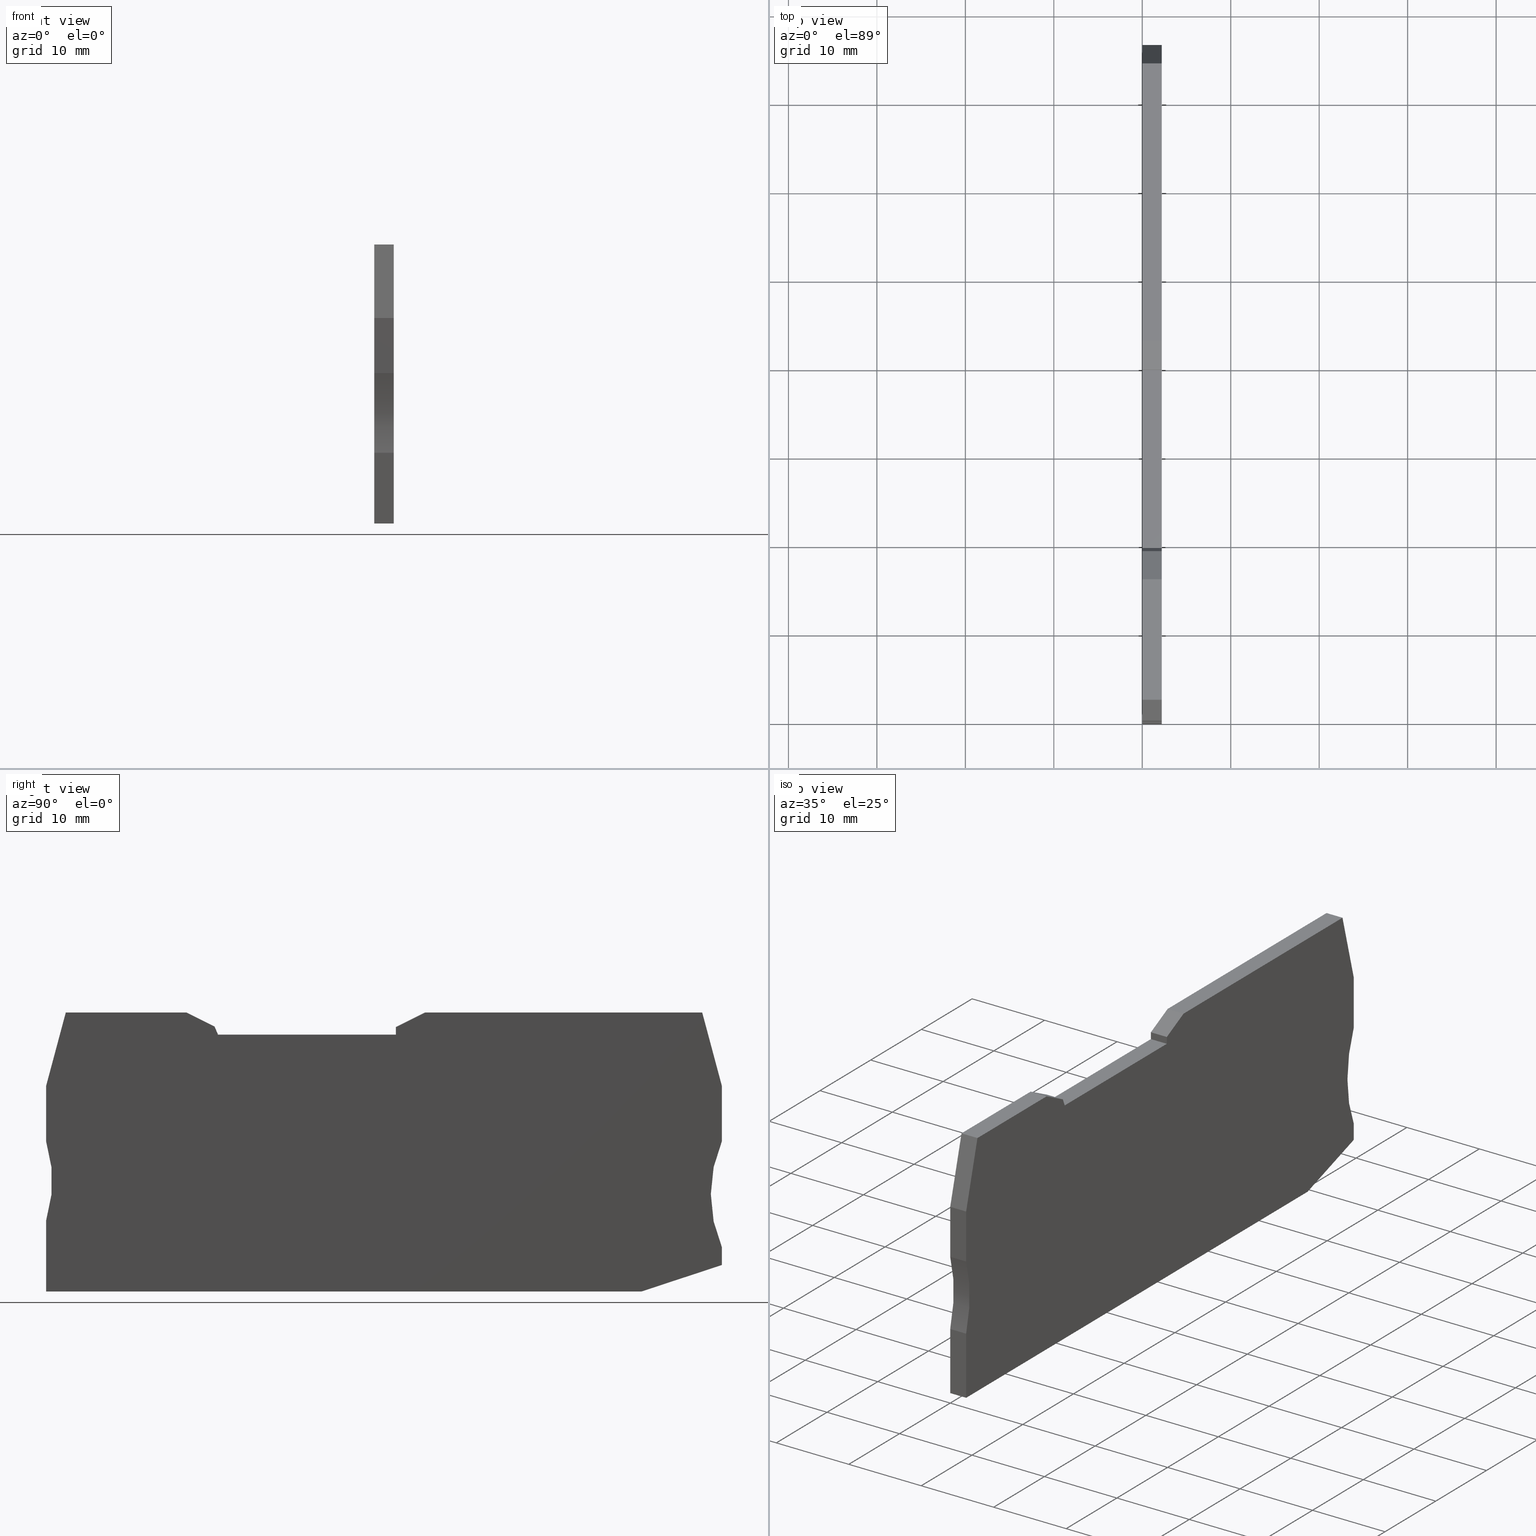
[diagram: canonical four-view strip — front | top / right | iso, engineering-drawing reading convention]
A machine part, canonical four-view strip (front | top / right | iso — engineering-drawing reading convention). The complete STEP part file that produces these views, byte-faithful:
ISO-10303-21;
HEADER;
FILE_DESCRIPTION(('Creo Elements/Direct Modeling STEP Export'),'2;1');
FILE_NAME(
'D:/temp/JobSpoolerServerData/JobServer Files/6bc5e54c-8e81-4801-906b-85
c1f5c6e055/work/output/model.stp','2018-01-20T22:33:25',(''),(''),
'Creo Elements/Direct Modeling STEP processor for AP214 (Solid Model)',
'Creo Elements/Direct Modeling 18.1I  14-Aug-2016 (C) Parametric Technol
ogy GmbH','');
FILE_SCHEMA(('AUTOMOTIVE_DESIGN { 1 0 10303 214 1 1 1 1 }'));
ENDSEC;
DATA;
#10=CARTESIAN_POINT('',(28.1611811075905,-9.15000000000794,
0.300000000000008));
#20=DIRECTION('',(7.76028776021509E-29,1.,4.55546761142704E-15));
#30=DIRECTION('',(-1.,0.,1.70351068697075E-14));
#40=AXIS2_PLACEMENT_3D('',#10,#20,#30);
#50=PLANE('',#40);
#60=CARTESIAN_POINT('',(28.1611811075905,-9.15000000000794,
-2.8421709430404E-14));
#70=DIRECTION('',(1.30896257623741E-14,-4.55546761142704E-15,1.));
#80=VECTOR('',#70,1.);
#90=LINE('',#60,#80);
#100=CARTESIAN_POINT('',(28.1611811075905,-9.15000000000793,
-3.68594044175552E-14));
#110=VERTEX_POINT('',#100);
#120=CARTESIAN_POINT('',(28.1611811075906,-9.15000000000795,
2.19999999999844));
#130=VERTEX_POINT('',#120);
#140=EDGE_CURVE('',#110,#130,#90,.T.);
#150=ORIENTED_EDGE('',*,*,#140,.T.);
#160=CARTESIAN_POINT('',(47.920285,-9.15000000000794,
-3.68594044175552E-14));
#170=DIRECTION('',(-1.,0.,0.));
#180=VECTOR('',#170,1.);
#190=LINE('',#160,#180);
#200=CARTESIAN_POINT('',(48.2784150526289,-9.15000000000794,
-3.68594044175552E-14));
#210=VERTEX_POINT('',#200);
#220=EDGE_CURVE('',#210,#110,#190,.T.);
#230=ORIENTED_EDGE('',*,*,#220,.T.);
#240=CARTESIAN_POINT('',(48.2784150526289,-9.15000000000794,
-2.8421709430404E-14));
#250=DIRECTION('',(-1.24455757664388E-14,4.55546761142704E-15,-1.));
#260=VECTOR('',#250,1.);
#270=LINE('',#240,#260);
#280=CARTESIAN_POINT('',(48.278415052629,-9.15000000000795,
2.19999999999844));
#290=VERTEX_POINT('',#280);
#300=EDGE_CURVE('',#290,#210,#270,.T.);
#310=ORIENTED_EDGE('',*,*,#300,.T.);
#320=CARTESIAN_POINT('',(47.920285,-9.15000000000794,2.19999999999844));
#330=DIRECTION('',(-1.,0.,0.));
#340=VECTOR('',#330,1.);
#350=LINE('',#320,#340);
#360=EDGE_CURVE('',#290,#130,#350,.T.);
#370=ORIENTED_EDGE('',*,*,#360,.F.);
#380=EDGE_LOOP('',(#370,#310,#230,#150));
#390=FACE_OUTER_BOUND('',#380,.T.);
#400=ADVANCED_FACE('',(#390),#50,.T.);
#410=COLOUR_RGB('',0.560784339904785,0.588235318660736,0.600000023841858
);
#420=FILL_AREA_STYLE_COLOUR('',#410);
#430=FILL_AREA_STYLE('',(#420));
#440=SURFACE_STYLE_FILL_AREA(#430);
#450=SURFACE_SIDE_STYLE('',(#440));
#460=SURFACE_STYLE_USAGE(.BOTH.,#450);
#470=PRESENTATION_STYLE_ASSIGNMENT((#460));
#480=CARTESIAN_POINT('',(83.7553585403554,-35.6536172442634,
-3.68594044175552E-14));
#490=DIRECTION('',(0.312838856482264,-0.949806217012117,0.));
#500=DIRECTION('',(-0.949806217012117,-0.312838856482264,0.));
#510=AXIS2_PLACEMENT_3D('',#480,#490,#500);
#520=PLANE('',#510);
#530=CARTESIAN_POINT('',(47.920285,-47.4566600413391,2.19999999999833));
#540=DIRECTION('',(-0.949806217012117,-0.312838856482264,
-9.43689570931383E-16));
#550=VECTOR('',#540,1.);
#560=LINE('',#530,#550);
#570=CARTESIAN_POINT('',(85.1296808260528,-35.2009550015923,
2.19999999999837));
#580=VERTEX_POINT('',#570);
#590=CARTESIAN_POINT('',(76.0243170722712,-38.2000000000014,
2.19999999999836));
#600=VERTEX_POINT('',#590);
#610=EDGE_CURVE('',#580,#600,#560,.T.);
#620=ORIENTED_EDGE('',*,*,#610,.T.);
#630=CARTESIAN_POINT('',(85.1296808260528,-35.2009550015923,
-2.8421709430404E-14));
#640=DIRECTION('',(0.,0.,1.));
#650=VECTOR('',#640,1.);
#660=LINE('',#630,#650);
#670=CARTESIAN_POINT('',(85.1296808260528,-35.2009550015923,
-3.68594044175552E-14));
#680=VERTEX_POINT('',#670);
#690=EDGE_CURVE('',#680,#580,#660,.T.);
#700=ORIENTED_EDGE('',*,*,#690,.T.);
#710=CARTESIAN_POINT('',(47.920285,-47.4566600413391,
-3.68594044175552E-14));
#720=DIRECTION('',(0.949806217012117,0.312838856482264,0.));
#730=VECTOR('',#720,1.);
#740=LINE('',#710,#730);
#750=CARTESIAN_POINT('',(76.0243170722712,-38.2000000000014,
-3.68594044175552E-14));
#760=VERTEX_POINT('',#750);
#770=EDGE_CURVE('',#760,#680,#740,.T.);
#780=ORIENTED_EDGE('',*,*,#770,.T.);
#790=CARTESIAN_POINT('',(76.0243170722712,-38.2000000000014,
-2.8421709430404E-14));
#800=DIRECTION('',(0.,0.,-1.));
#810=VECTOR('',#800,1.);
#820=LINE('',#790,#810);
#830=EDGE_CURVE('',#600,#760,#820,.T.);
#840=ORIENTED_EDGE('',*,*,#830,.T.);
#850=EDGE_LOOP('',(#840,#780,#700,#620));
#860=FACE_OUTER_BOUND('',#850,.T.);
#870=ADVANCED_FACE('',(#860),#520,.T.);
#880=COLOUR_RGB('',0.560784339904785,0.588235318660736,0.600000023841858
);
#890=FILL_AREA_STYLE_COLOUR('',#880);
#900=FILL_AREA_STYLE('',(#890));
#910=SURFACE_STYLE_FILL_AREA(#900);
#920=SURFACE_SIDE_STYLE('',(#910));
#930=SURFACE_STYLE_USAGE(.BOTH.,#920);
#940=PRESENTATION_STYLE_ASSIGNMENT((#930));
#950=CARTESIAN_POINT('',(79.8284829547486,-6.65000000001046,
-3.68594044175552E-14));
#960=DIRECTION('',(0.,1.,0.));
#970=DIRECTION('',(0.,0.,1.));
#980=AXIS2_PLACEMENT_3D('',#950,#960,#970);
#990=PLANE('',#980);
#1000=CARTESIAN_POINT('',(82.9015374042713,-6.65000000001046,
-2.8421709430404E-14));
#1010=DIRECTION('',(0.,0.,-1.));
#1020=VECTOR('',#1010,1.);
#1030=LINE('',#1000,#1020);
#1040=CARTESIAN_POINT('',(82.9015374042713,-6.65000000001046,
2.19999999999845));
#1050=VERTEX_POINT('',#1040);
#1060=CARTESIAN_POINT('',(82.9015374042713,-6.65000000001046,
-3.68594044175552E-14));
#1070=VERTEX_POINT('',#1060);
#1080=EDGE_CURVE('',#1050,#1070,#1030,.T.);
#1090=ORIENTED_EDGE('',*,*,#1080,.T.);
#1100=CARTESIAN_POINT('',(47.920285,-6.65000000001046,2.19999999999845))
;
#1110=DIRECTION('',(1.,0.,0.));
#1120=VECTOR('',#1110,1.);
#1130=LINE('',#1100,#1120);
#1140=CARTESIAN_POINT('',(51.5784150526186,-6.65000000001046,
2.19999999999845));
#1150=VERTEX_POINT('',#1140);
#1160=EDGE_CURVE('',#1150,#1050,#1130,.T.);
#1170=ORIENTED_EDGE('',*,*,#1160,.T.);
#1180=CARTESIAN_POINT('',(51.5784150526186,-6.65000000001045,
-2.8421709430404E-14));
#1190=DIRECTION('',(-1.85088132276715E-14,0.,-1.));
#1200=VECTOR('',#1190,1.);
#1210=LINE('',#1180,#1200);
#1220=CARTESIAN_POINT('',(51.5784150526186,-6.65000000001046,
-3.68594044175552E-14));
#1230=VERTEX_POINT('',#1220);
#1240=EDGE_CURVE('',#1150,#1230,#1210,.T.);
#1250=ORIENTED_EDGE('',*,*,#1240,.F.);
#1260=CARTESIAN_POINT('',(47.920285,-6.65000000001046,
-3.68594044175552E-14));
#1270=DIRECTION('',(-1.,0.,0.));
#1280=VECTOR('',#1270,1.);
#1290=LINE('',#1260,#1280);
#1300=EDGE_CURVE('',#1070,#1230,#1290,.T.);
#1310=ORIENTED_EDGE('',*,*,#1300,.T.);
#1320=EDGE_LOOP('',(#1310,#1250,#1170,#1090));
#1330=FACE_OUTER_BOUND('',#1320,.T.);
#1340=ADVANCED_FACE('',(#1330),#990,.T.);
#1350=COLOUR_RGB('',0.560784339904785,0.588235318660736,
0.600000023841858);
#1360=FILL_AREA_STYLE_COLOUR('',#1350);
#1370=FILL_AREA_STYLE('',(#1360));
#1380=SURFACE_STYLE_FILL_AREA(#1370);
#1390=SURFACE_SIDE_STYLE('',(#1380));
#1400=SURFACE_STYLE_USAGE(.BOTH.,#1390);
#1410=PRESENTATION_STYLE_ASSIGNMENT((#1400));
#1420=CARTESIAN_POINT('',(98.8774079109191,-27.2000000000027,
-3.68594044175552E-14));
#1430=DIRECTION('',(0.,0.,1.));
#1440=DIRECTION('',(1.,0.,0.));
#1450=AXIS2_PLACEMENT_3D('',#1420,#1430,#1440);
#1460=CYLINDRICAL_SURFACE('',#1450,15.);
#1470=CARTESIAN_POINT('',(85.1296808260528,-33.2000000000057,
-3.68594044175552E-14));
#1480=DIRECTION('',(0.,0.,-1.));
#1490=VECTOR('',#1480,1.);
#1500=LINE('',#1470,#1490);
#1510=CARTESIAN_POINT('',(85.1296808260528,-33.2000000000057,
2.19999999999837));
#1520=VERTEX_POINT('',#1510);
#1530=CARTESIAN_POINT('',(85.1296808260528,-33.2000000000057,
-3.68594044175552E-14));
#1540=VERTEX_POINT('',#1530);
#1550=EDGE_CURVE('',#1520,#1540,#1500,.T.);
#1560=ORIENTED_EDGE('',*,*,#1550,.T.);
#1570=CARTESIAN_POINT('',(98.8774079109191,-27.2000000000027,
2.19999999999839));
#1580=DIRECTION('',(0.,0.,1.));
#1590=DIRECTION('',(1.,0.,0.));
#1600=AXIS2_PLACEMENT_3D('',#1570,#1580,#1590);
#1610=CIRCLE('',#1600,15.);
#1620=CARTESIAN_POINT('',(85.1296808260516,-21.2000000000027,
2.19999999999841));
#1630=VERTEX_POINT('',#1620);
#1640=EDGE_CURVE('',#1630,#1520,#1610,.T.);
#1650=ORIENTED_EDGE('',*,*,#1640,.T.);
#1660=CARTESIAN_POINT('',(85.1296808260516,-21.2000000000027,
-3.68594044175552E-14));
#1670=DIRECTION('',(0.,0.,-1.));
#1680=VECTOR('',#1670,1.);
#1690=LINE('',#1660,#1680);
#1700=CARTESIAN_POINT('',(85.1296808260516,-21.2000000000027,
-3.68594044175552E-14));
#1710=VERTEX_POINT('',#1700);
#1720=EDGE_CURVE('',#1630,#1710,#1690,.T.);
#1730=ORIENTED_EDGE('',*,*,#1720,.F.);
#1740=CARTESIAN_POINT('',(98.8774079109191,-27.2000000000027,
-3.68594044175552E-14));
#1750=DIRECTION('',(0.,0.,1.));
#1760=DIRECTION('',(1.,0.,0.));
#1770=AXIS2_PLACEMENT_3D('',#1740,#1750,#1760);
#1780=CIRCLE('',#1770,15.);
#1790=EDGE_CURVE('',#1710,#1540,#1780,.T.);
#1800=ORIENTED_EDGE('',*,*,#1790,.F.);
#1810=EDGE_LOOP('',(#1800,#1730,#1650,#1560));
#1820=FACE_OUTER_BOUND('',#1810,.T.);
#1830=ADVANCED_FACE('',(#1820),#1460,.F.);
#1840=COLOUR_RGB('',0.560784339904785,0.588235318660736,
0.600000023841858);
#1850=FILL_AREA_STYLE_COLOUR('',#1840);
#1860=FILL_AREA_STYLE('',(#1850));
#1870=SURFACE_STYLE_FILL_AREA(#1860);
#1880=SURFACE_SIDE_STYLE('',(#1870));
#1890=SURFACE_STYLE_USAGE(.BOTH.,#1880);
#1900=PRESENTATION_STYLE_ASSIGNMENT((#1890));
#1910=CARTESIAN_POINT('',(27.7810984886105,-8.25070883130204,
-9.05973373915859E-13));
#1920=DIRECTION('',(0.92110933002153,0.389303997086195,
-1.02835146664877E-14));
#1930=DIRECTION('',(0.389303997086195,-0.92110933002153,
-7.63756468974913E-15));
#1940=AXIS2_PLACEMENT_3D('',#1910,#1920,#1930);
#1950=PLANE('',#1940);
#1960=CARTESIAN_POINT('',(38.6158283461584,-33.886127,2.19999999999837))
;
#1970=DIRECTION('',(-0.389303997086195,0.92110933002153,
2.80331313717852E-15));
#1980=VECTOR('',#1970,1.);
#1990=LINE('',#1960,#1980);
#2000=CARTESIAN_POINT('',(27.7810984886105,-8.25070883130206,
2.19999999999845));
#2010=VERTEX_POINT('',#2000);
#2020=EDGE_CURVE('',#130,#2010,#1990,.T.);
#2030=ORIENTED_EDGE('',*,*,#2020,.F.);
#2040=CARTESIAN_POINT('',(27.7810984886105,-8.25070883130205,
-2.8421709430404E-14));
#2050=DIRECTION('',(-1.24455757664388E-14,3.03161873061275E-15,-1.));
#2060=VECTOR('',#2050,1.);
#2070=LINE('',#2040,#2060);
#2080=CARTESIAN_POINT('',(27.7810984886105,-8.25070883130203,
-3.68594044175552E-14));
#2090=VERTEX_POINT('',#2080);
#2100=EDGE_CURVE('',#2010,#2090,#2070,.T.);
#2110=ORIENTED_EDGE('',*,*,#2100,.F.);
#2120=CARTESIAN_POINT('',(38.6158283461584,-33.886127,
-3.68594044175552E-14));
#2130=DIRECTION('',(-0.389303997086195,0.92110933002153,0.));
#2140=VECTOR('',#2130,1.);
#2150=LINE('',#2120,#2140);
#2160=EDGE_CURVE('',#110,#2090,#2150,.T.);
#2170=ORIENTED_EDGE('',*,*,#2160,.T.);
#2180=ORIENTED_EDGE('',*,*,#140,.F.);
#2190=EDGE_LOOP('',(#2180,#2170,#2110,#2030));
#2200=FACE_OUTER_BOUND('',#2190,.T.);
#2210=ADVANCED_FACE('',(#2200),#1950,.T.);
#2220=COLOUR_RGB('',0.560784339904785,0.588235318660736,
0.600000023841858);
#2230=FILL_AREA_STYLE_COLOUR('',#2220);
#2240=FILL_AREA_STYLE('',(#2230));
#2250=SURFACE_STYLE_FILL_AREA(#2240);
#2260=SURFACE_SIDE_STYLE('',(#2250));
#2270=SURFACE_STYLE_USAGE(.BOTH.,#2260);
#2280=PRESENTATION_STYLE_ASSIGNMENT((#2270));
#2290=CARTESIAN_POINT('',(14.333386917148,-6.65000000001046,
2.19999999999997));
#2300=DIRECTION('',(-0.,1.,0.));
#2310=DIRECTION('',(1.,0.,0.));
#2320=AXIS2_PLACEMENT_3D('',#2290,#2300,#2310);
#2330=PLANE('',#2320);
#2340=CARTESIAN_POINT('',(10.9578242464708,-6.65000000001046,
-2.8421709430404E-14));
#2350=DIRECTION('',(0.,0.,1.));
#2360=VECTOR('',#2350,1.);
#2370=LINE('',#2340,#2360);
#2380=CARTESIAN_POINT('',(10.9578242464708,-6.65000000001046,
-3.68594044175552E-14));
#2390=VERTEX_POINT('',#2380);
#2400=CARTESIAN_POINT('',(10.9578242464708,-6.65000000001046,
2.19999999999845));
#2410=VERTEX_POINT('',#2400);
#2420=EDGE_CURVE('',#2390,#2410,#2370,.T.);
#2430=ORIENTED_EDGE('',*,*,#2420,.T.);
#2440=CARTESIAN_POINT('',(47.920285,-6.65000000001046,
-3.68594044175552E-14));
#2450=DIRECTION('',(-1.,0.,0.));
#2460=VECTOR('',#2450,1.);
#2470=LINE('',#2440,#2460);
#2480=CARTESIAN_POINT('',(24.5796808260341,-6.65000000001046,
-3.68594044175552E-14));
#2490=VERTEX_POINT('',#2480);
#2500=EDGE_CURVE('',#2490,#2390,#2470,.T.);
#2510=ORIENTED_EDGE('',*,*,#2500,.T.);
#2520=CARTESIAN_POINT('',(24.5796808260341,-6.65000000001046,
-2.8421709430404E-14));
#2530=DIRECTION('',(6.38233830522613E-15,0.,1.));
#2540=VECTOR('',#2530,1.);
#2550=LINE('',#2520,#2540);
#2560=CARTESIAN_POINT('',(24.5796808260341,-6.65000000001046,
2.19999999999845));
#2570=VERTEX_POINT('',#2560);
#2580=EDGE_CURVE('',#2490,#2570,#2550,.T.);
#2590=ORIENTED_EDGE('',*,*,#2580,.F.);
#2600=CARTESIAN_POINT('',(47.920285,-6.65000000001046,2.19999999999845))
;
#2610=DIRECTION('',(1.,0.,0.));
#2620=VECTOR('',#2610,1.);
#2630=LINE('',#2600,#2620);
#2640=EDGE_CURVE('',#2410,#2570,#2630,.T.);
#2650=ORIENTED_EDGE('',*,*,#2640,.T.);
#2660=EDGE_LOOP('',(#2650,#2590,#2510,#2430));
#2670=FACE_OUTER_BOUND('',#2660,.T.);
#2680=ADVANCED_FACE('',(#2670),#2330,.T.);
#2690=COLOUR_RGB('',0.560784339904785,0.588235318660736,
0.600000023841858);
#2700=FILL_AREA_STYLE_COLOUR('',#2690);
#2710=FILL_AREA_STYLE('',(#2700));
#2720=SURFACE_STYLE_FILL_AREA(#2710);
#2730=SURFACE_SIDE_STYLE('',(#2720));
#2740=SURFACE_STYLE_USAGE(.BOTH.,#2730);
#2750=PRESENTATION_STYLE_ASSIGNMENT((#2740));
#2760=CARTESIAN_POINT('',(26.4045551505931,-7.56243716229187,
-8.86754922223255E-13));
#2770=DIRECTION('',(0.447213595500715,0.894427190999537,
-2.85426846118211E-15));
#2780=DIRECTION('',(0.894427190999537,-0.447213595500715,
-1.24874424858524E-14));
#2790=AXIS2_PLACEMENT_3D('',#2760,#2770,#2780);
#2800=PLANE('',#2790);
#2810=CARTESIAN_POINT('',(47.920285,-18.3203020870181,2.19999999999842))
;
#2820=DIRECTION('',(0.894427190999537,-0.447213595500715,
-1.33226762955019E-15));
#2830=VECTOR('',#2820,1.);
#2840=LINE('',#2810,#2830);
#2850=EDGE_CURVE('',#2570,#2010,#2840,.T.);
#2860=ORIENTED_EDGE('',*,*,#2850,.T.);
#2870=ORIENTED_EDGE('',*,*,#2580,.T.);
#2880=CARTESIAN_POINT('',(47.920285,-18.3203020870181,
-3.68594044175552E-14));
#2890=DIRECTION('',(-0.894427190999537,0.447213595500715,0.));
#2900=VECTOR('',#2890,1.);
#2910=LINE('',#2880,#2900);
#2920=EDGE_CURVE('',#2090,#2490,#2910,.T.);
#2930=ORIENTED_EDGE('',*,*,#2920,.T.);
#2940=ORIENTED_EDGE('',*,*,#2100,.T.);
#2950=EDGE_LOOP('',(#2940,#2930,#2870,#2860));
#2960=FACE_OUTER_BOUND('',#2950,.T.);
#2970=ADVANCED_FACE('',(#2960),#2800,.T.);
#2980=COLOUR_RGB('',0.560784339904785,0.588235318660736,
0.600000023841858);
#2990=FILL_AREA_STYLE_COLOUR('',#2980);
#3000=FILL_AREA_STYLE('',(#2990));
#3010=SURFACE_STYLE_FILL_AREA(#3000);
#3020=SURFACE_SIDE_STYLE('',(#3010));
#3030=SURFACE_STYLE_USAGE(.BOTH.,#3020);
#3040=PRESENTATION_STYLE_ASSIGNMENT((#3030));
#3050=CARTESIAN_POINT('',(48.278415052629,-8.30000000000333,
2.19999999999884));
#3060=DIRECTION('',(-1.,0.,1.24455757664388E-14));
#3070=DIRECTION('',(3.77302406067959E-29,1.,3.03161873061274E-15));
#3080=AXIS2_PLACEMENT_3D('',#3050,#3060,#3070);
#3090=PLANE('',#3080);
#3100=CARTESIAN_POINT('',(48.2784150526289,-33.886127,
-3.68594044175552E-14));
#3110=DIRECTION('',(0.,-1.,0.));
#3120=VECTOR('',#3110,1.);
#3130=LINE('',#3100,#3120);
#3140=CARTESIAN_POINT('',(48.2784150526289,-8.30000000000332,
-3.68594044175552E-14));
#3150=VERTEX_POINT('',#3140);
#3160=EDGE_CURVE('',#3150,#210,#3130,.T.);
#3170=ORIENTED_EDGE('',*,*,#3160,.T.);
#3180=CARTESIAN_POINT('',(48.2784150526289,-8.30000000000332,
-2.8421709430404E-14));
#3190=DIRECTION('',(-1.24455757664388E-14,3.03161873061275E-15,-1.));
#3200=VECTOR('',#3190,1.);
#3210=LINE('',#3180,#3200);
#3220=CARTESIAN_POINT('',(48.278415052629,-8.30000000000333,
2.19999999999845));
#3230=VERTEX_POINT('',#3220);
#3240=EDGE_CURVE('',#3230,#3150,#3210,.T.);
#3250=ORIENTED_EDGE('',*,*,#3240,.T.);
#3260=CARTESIAN_POINT('',(48.278415052629,-33.886127,2.19999999999837));
#3270=DIRECTION('',(3.78653234506086E-29,1.,3.03161873061274E-15));
#3280=VECTOR('',#3270,1.);
#3290=LINE('',#3260,#3280);
#3300=EDGE_CURVE('',#290,#3230,#3290,.T.);
#3310=ORIENTED_EDGE('',*,*,#3300,.T.);
#3320=ORIENTED_EDGE('',*,*,#300,.F.);
#3330=EDGE_LOOP('',(#3320,#3310,#3250,#3170));
#3340=FACE_OUTER_BOUND('',#3330,.T.);
#3350=ADVANCED_FACE('',(#3340),#3090,.T.);
#3360=COLOUR_RGB('',0.560784339904785,0.588235318660736,
0.600000023841858);
#3370=FILL_AREA_STYLE_COLOUR('',#3360);
#3380=FILL_AREA_STYLE('',(#3370));
#3390=SURFACE_STYLE_FILL_AREA(#3380);
#3400=SURFACE_SIDE_STYLE('',(#3390));
#3410=SURFACE_STYLE_USAGE(.BOTH.,#3400);
#3420=PRESENTATION_STYLE_ASSIGNMENT((#3410));
#3430=CARTESIAN_POINT('',(8.72968082469054,-30.4972542058032,
2.19999999999997));
#3440=DIRECTION('',(-1.,0.,0.));
#3450=DIRECTION('',(0.,1.,0.));
#3460=AXIS2_PLACEMENT_3D('',#3430,#3440,#3450);
#3470=PLANE('',#3460);
#3480=CARTESIAN_POINT('',(8.72968082469054,-33.886127,2.19999999999837))
;
#3490=DIRECTION('',(0.,1.,3.03161873061274E-15));
#3500=VECTOR('',#3490,1.);
#3510=LINE('',#3480,#3500);
#3520=CARTESIAN_POINT('',(8.72968082469054,-38.2000000000014,
2.19999999999836));
#3530=VERTEX_POINT('',#3520);
#3540=CARTESIAN_POINT('',(8.72968082469054,-30.2000000000115,
2.19999999999838));
#3550=VERTEX_POINT('',#3540);
#3560=EDGE_CURVE('',#3530,#3550,#3510,.T.);
#3570=ORIENTED_EDGE('',*,*,#3560,.T.);
#3580=CARTESIAN_POINT('',(8.72968082469054,-38.2000000000014,
-2.8421709430404E-14));
#3590=DIRECTION('',(0.,0.,-1.));
#3600=VECTOR('',#3590,1.);
#3610=LINE('',#3580,#3600);
#3620=CARTESIAN_POINT('',(8.72968082469054,-38.2000000000014,
-3.68594044175552E-14));
#3630=VERTEX_POINT('',#3620);
#3640=EDGE_CURVE('',#3530,#3630,#3610,.T.);
#3650=ORIENTED_EDGE('',*,*,#3640,.F.);
#3660=CARTESIAN_POINT('',(8.72968082469054,-33.886127,
-3.68594044175552E-14));
#3670=DIRECTION('',(0.,-1.,0.));
#3680=VECTOR('',#3670,1.);
#3690=LINE('',#3660,#3680);
#3700=CARTESIAN_POINT('',(8.72968082469054,-30.2000000000115,
-3.68594044175552E-14));
#3710=VERTEX_POINT('',#3700);
#3720=EDGE_CURVE('',#3710,#3630,#3690,.T.);
#3730=ORIENTED_EDGE('',*,*,#3720,.T.);
#3740=CARTESIAN_POINT('',(8.72968082469054,-30.2000000000115,
2.19999999999997));
#3750=DIRECTION('',(0.,0.,1.));
#3760=VECTOR('',#3750,1.);
#3770=LINE('',#3740,#3760);
#3780=EDGE_CURVE('',#3710,#3550,#3770,.T.);
#3790=ORIENTED_EDGE('',*,*,#3780,.F.);
#3800=EDGE_LOOP('',(#3790,#3730,#3650,#3570));
#3810=FACE_OUTER_BOUND('',#3800,.T.);
#3820=ADVANCED_FACE('',(#3810),#3470,.T.);
#3830=COLOUR_RGB('',0.560784339904785,0.588235318660736,
0.600000023841858);
#3840=FILL_AREA_STYLE_COLOUR('',#3830);
#3850=FILL_AREA_STYLE('',(#3840));
#3860=SURFACE_STYLE_FILL_AREA(#3850);
#3870=SURFACE_SIDE_STYLE('',(#3860));
#3880=SURFACE_STYLE_USAGE(.BOTH.,#3870);
#3890=PRESENTATION_STYLE_ASSIGNMENT((#3880));
#3900=CARTESIAN_POINT('',(83.0008368234265,-7.02059047745899,
-3.68594044175552E-14));
#3910=DIRECTION('',(0.965925826288966,0.258819045102903,-0.));
#3920=DIRECTION('',(-0.258819045102903,0.965925826288966,0.));
#3930=AXIS2_PLACEMENT_3D('',#3900,#3910,#3920);
#3940=PLANE('',#3930);
#3950=CARTESIAN_POINT('',(90.1994356388816,-33.886127,
-3.68594044175552E-14));
#3960=DIRECTION('',(-0.258819045102903,0.965925826288966,0.));
#3970=VECTOR('',#3960,1.);
#3980=LINE('',#3950,#3970);
#3990=CARTESIAN_POINT('',(85.1296808260516,-14.9655444566315,
-3.68594044175552E-14));
#4000=VERTEX_POINT('',#3990);
#4010=EDGE_CURVE('',#4000,#1070,#3980,.T.);
#4020=ORIENTED_EDGE('',*,*,#4010,.T.);
#4030=CARTESIAN_POINT('',(85.1296808260516,-14.9655444566315,
-2.8421709430404E-14));
#4040=DIRECTION('',(0.,0.,1.));
#4050=VECTOR('',#4040,1.);
#4060=LINE('',#4030,#4050);
#4070=CARTESIAN_POINT('',(85.1296808260516,-14.9655444566315,
2.19999999999843));
#4080=VERTEX_POINT('',#4070);
#4090=EDGE_CURVE('',#4000,#4080,#4060,.T.);
#4100=ORIENTED_EDGE('',*,*,#4090,.F.);
#4110=CARTESIAN_POINT('',(90.1994356388816,-33.886127,2.19999999999837))
;
#4120=DIRECTION('',(0.258819045102903,-0.965925826288966,
-2.96984659087229E-15));
#4130=VECTOR('',#4120,1.);
#4140=LINE('',#4110,#4130);
#4150=EDGE_CURVE('',#1050,#4080,#4140,.T.);
#4160=ORIENTED_EDGE('',*,*,#4150,.T.);
#4170=ORIENTED_EDGE('',*,*,#1080,.F.);
#4180=EDGE_LOOP('',(#4170,#4160,#4100,#4020));
#4190=FACE_OUTER_BOUND('',#4180,.T.);
#4200=ADVANCED_FACE('',(#4190),#3940,.T.);
#4210=COLOUR_RGB('',0.560784339904785,0.588235318660736,
0.600000023841858);
#4220=FILL_AREA_STYLE_COLOUR('',#4210);
#4230=FILL_AREA_STYLE('',(#4220));
#4240=SURFACE_STYLE_FILL_AREA(#4230);
#4250=SURFACE_SIDE_STYLE('',(#4240));
#4260=SURFACE_STYLE_USAGE(.BOTH.,#4250);
#4270=PRESENTATION_STYLE_ASSIGNMENT((#4260));
#4280=CARTESIAN_POINT('',(79.8284829547486,-6.65000000001046,
2.19999999999845));
#4290=DIRECTION('',(0.,-3.03161873061274E-15,1.));
#4300=DIRECTION('',(0.,-1.,-3.03161873061274E-15));
#4310=AXIS2_PLACEMENT_3D('',#4280,#4290,#4300);
#4320=PLANE('',#4310);
#4330=CARTESIAN_POINT('',(3.65992601186053,-33.886127,2.19999999999837))
;
#4340=DIRECTION('',(0.258819045102903,0.965925826288966,
2.96984659087229E-15));
#4350=VECTOR('',#4340,1.);
#4360=LINE('',#4330,#4350);
#4370=CARTESIAN_POINT('',(8.72968082469053,-14.9655444566315,
2.19999999999843));
#4380=VERTEX_POINT('',#4370);
#4390=EDGE_CURVE('',#4380,#2410,#4360,.T.);
#4400=ORIENTED_EDGE('',*,*,#4390,.F.);
#4410=ORIENTED_EDGE('',*,*,#2640,.F.);
#4420=ORIENTED_EDGE('',*,*,#2850,.F.);
#4430=ORIENTED_EDGE('',*,*,#2020,.T.);
#4440=ORIENTED_EDGE('',*,*,#360,.T.);
#4450=ORIENTED_EDGE('',*,*,#3300,.F.);
#4460=CARTESIAN_POINT('',(47.920285,-8.4790650263176,2.19999999999845));
#4470=DIRECTION('',(0.894427191000128,0.447213595499534,
1.36002320516582E-15));
#4480=VECTOR('',#4470,1.);
#4490=LINE('',#4460,#4480);
#4500=EDGE_CURVE('',#3230,#1150,#4490,.T.);
#4510=ORIENTED_EDGE('',*,*,#4500,.F.);
#4520=ORIENTED_EDGE('',*,*,#1160,.F.);
#4530=ORIENTED_EDGE('',*,*,#4150,.F.);
#4540=CARTESIAN_POINT('',(85.1296808260516,-33.886127,2.19999999999837))
;
#4550=DIRECTION('',(2.77555756156289E-17,-1.,-3.03161873061274E-15));
#4560=VECTOR('',#4550,1.);
#4570=LINE('',#4540,#4560);
#4580=EDGE_CURVE('',#4080,#1630,#4570,.T.);
#4590=ORIENTED_EDGE('',*,*,#4580,.F.);
#4600=ORIENTED_EDGE('',*,*,#1640,.F.);
#4610=CARTESIAN_POINT('',(85.1296808260528,-33.886127,2.19999999999837))
;
#4620=DIRECTION('',(0.,1.,3.03161873061274E-15));
#4630=VECTOR('',#4620,1.);
#4640=LINE('',#4610,#4630);
#4650=EDGE_CURVE('',#580,#1520,#4640,.T.);
#4660=ORIENTED_EDGE('',*,*,#4650,.T.);
#4670=ORIENTED_EDGE('',*,*,#610,.F.);
#4680=CARTESIAN_POINT('',(47.920285,-38.2000000000014,2.19999999999836))
;
#4690=DIRECTION('',(-1.,0.,0.));
#4700=VECTOR('',#4690,1.);
#4710=LINE('',#4680,#4700);
#4720=EDGE_CURVE('',#600,#3530,#4710,.T.);
#4730=ORIENTED_EDGE('',*,*,#4720,.F.);
#4740=ORIENTED_EDGE('',*,*,#3560,.F.);
#4750=CARTESIAN_POINT('',(-5.57940719656269,-25.7000000000085,
2.19999999999839));
#4760=DIRECTION('',(0.,0.,1.));
#4770=DIRECTION('',(1.,0.,0.));
#4780=AXIS2_PLACEMENT_3D('',#4750,#4760,#4770);
#4790=CIRCLE('',#4780,15.);
#4800=CARTESIAN_POINT('',(8.72968082469053,-21.2000000000056,
2.19999999999841));
#4810=VERTEX_POINT('',#4800);
#4820=EDGE_CURVE('',#3550,#4810,#4790,.T.);
#4830=ORIENTED_EDGE('',*,*,#4820,.F.);
#4840=CARTESIAN_POINT('',(8.72968082469053,-33.886127,2.19999999999837))
;
#4850=DIRECTION('',(0.,1.,3.03161873061274E-15));
#4860=VECTOR('',#4850,1.);
#4870=LINE('',#4840,#4860);
#4880=EDGE_CURVE('',#4810,#4380,#4870,.T.);
#4890=ORIENTED_EDGE('',*,*,#4880,.F.);
#4900=EDGE_LOOP('',(#4890,#4830,#4740,#4730,#4670,#4660,#4600,#4590,
#4530,#4520,#4510,#4450,#4440,#4430,#4420,#4410,#4400));
#4910=FACE_OUTER_BOUND('',#4900,.T.);
#4920=ADVANCED_FACE('',(#4910),#4320,.T.);
#4930=COLOUR_RGB('',0.560784339904785,0.588235318660736,
0.600000023841858);
#4940=FILL_AREA_STYLE_COLOUR('',#4930);
#4950=FILL_AREA_STYLE('',(#4940));
#4960=SURFACE_STYLE_FILL_AREA(#4950);
#4970=SURFACE_SIDE_STYLE('',(#4960));
#4980=SURFACE_STYLE_USAGE(.BOTH.,#4970);
#4990=PRESENTATION_STYLE_ASSIGNMENT((#4980));
#5000=CARTESIAN_POINT('',(8.72968082469053,-14.9655444566315,
2.19999999999997));
#5010=DIRECTION('',(-1.,0.,0.));
#5020=DIRECTION('',(0.,1.,0.));
#5030=AXIS2_PLACEMENT_3D('',#5000,#5010,#5020);
#5040=PLANE('',#5030);
#5050=ORIENTED_EDGE('',*,*,#4880,.T.);
#5060=CARTESIAN_POINT('',(8.72968082469053,-21.2000000000055,
2.19999999999997));
#5070=DIRECTION('',(0.,0.,-1.));
#5080=VECTOR('',#5070,1.);
#5090=LINE('',#5060,#5080);
#5100=CARTESIAN_POINT('',(8.72968082469053,-21.2000000000056,
-3.68594044175552E-14));
#5110=VERTEX_POINT('',#5100);
#5120=EDGE_CURVE('',#4810,#5110,#5090,.T.);
#5130=ORIENTED_EDGE('',*,*,#5120,.F.);
#5140=CARTESIAN_POINT('',(8.72968082469053,-33.886127,
-3.68594044175552E-14));
#5150=DIRECTION('',(0.,-1.,0.));
#5160=VECTOR('',#5150,1.);
#5170=LINE('',#5140,#5160);
#5180=CARTESIAN_POINT('',(8.72968082469053,-14.9655444566315,
-3.68594044175552E-14));
#5190=VERTEX_POINT('',#5180);
#5200=EDGE_CURVE('',#5190,#5110,#5170,.T.);
#5210=ORIENTED_EDGE('',*,*,#5200,.T.);
#5220=CARTESIAN_POINT('',(8.72968082469053,-14.9655444566315,
-2.8421709430404E-14));
#5230=DIRECTION('',(0.,0.,1.));
#5240=VECTOR('',#5230,1.);
#5250=LINE('',#5220,#5240);
#5260=EDGE_CURVE('',#5190,#4380,#5250,.T.);
#5270=ORIENTED_EDGE('',*,*,#5260,.F.);
#5280=EDGE_LOOP('',(#5270,#5210,#5130,#5050));
#5290=FACE_OUTER_BOUND('',#5280,.T.);
#5300=ADVANCED_FACE('',(#5290),#5040,.T.);
#5310=COLOUR_RGB('',0.560784339904785,0.588235318660736,
0.600000023841858);
#5320=FILL_AREA_STYLE_COLOUR('',#5310);
#5330=FILL_AREA_STYLE('',(#5320));
#5340=SURFACE_STYLE_FILL_AREA(#5330);
#5350=SURFACE_SIDE_STYLE('',(#5340));
#5360=SURFACE_STYLE_USAGE(.BOTH.,#5350);
#5370=PRESENTATION_STYLE_ASSIGNMENT((#5360));
#5380=CARTESIAN_POINT('',(20.0991862296523,-7.1779622007583,
-3.68594044175552E-14));
#5390=DIRECTION('',(0.,0.,-1.));
#5400=DIRECTION('',(-1.,0.,0.));
#5410=AXIS2_PLACEMENT_3D('',#5380,#5390,#5400);
#5420=PLANE('',#5410);
#5430=ORIENTED_EDGE('',*,*,#5200,.F.);
#5440=CARTESIAN_POINT('',(-5.57940719656269,-25.7000000000085,
-3.68594044175552E-14));
#5450=DIRECTION('',(0.,0.,1.));
#5460=DIRECTION('',(1.,0.,0.));
#5470=AXIS2_PLACEMENT_3D('',#5440,#5450,#5460);
#5480=CIRCLE('',#5470,15.);
#5490=EDGE_CURVE('',#3710,#5110,#5480,.T.);
#5500=ORIENTED_EDGE('',*,*,#5490,.T.);
#5510=ORIENTED_EDGE('',*,*,#3720,.F.);
#5520=CARTESIAN_POINT('',(47.920285,-38.2000000000014,
-3.68594044175552E-14));
#5530=DIRECTION('',(1.,0.,0.));
#5540=VECTOR('',#5530,1.);
#5550=LINE('',#5520,#5540);
#5560=EDGE_CURVE('',#3630,#760,#5550,.T.);
#5570=ORIENTED_EDGE('',*,*,#5560,.F.);
#5580=ORIENTED_EDGE('',*,*,#770,.F.);
#5590=CARTESIAN_POINT('',(85.1296808260528,-33.886127,
-3.68594044175552E-14));
#5600=DIRECTION('',(0.,-1.,0.));
#5610=VECTOR('',#5600,1.);
#5620=LINE('',#5590,#5610);
#5630=EDGE_CURVE('',#1540,#680,#5620,.T.);
#5640=ORIENTED_EDGE('',*,*,#5630,.T.);
#5650=ORIENTED_EDGE('',*,*,#1790,.T.);
#5660=CARTESIAN_POINT('',(85.1296808260516,-33.886127,
-3.68594044175552E-14));
#5670=DIRECTION('',(-2.77555756156289E-17,1.,0.));
#5680=VECTOR('',#5670,1.);
#5690=LINE('',#5660,#5680);
#5700=EDGE_CURVE('',#1710,#4000,#5690,.T.);
#5710=ORIENTED_EDGE('',*,*,#5700,.F.);
#5720=ORIENTED_EDGE('',*,*,#4010,.F.);
#5730=ORIENTED_EDGE('',*,*,#1300,.F.);
#5740=CARTESIAN_POINT('',(47.920285,-8.47906502631758,
-3.68594044175552E-14));
#5750=DIRECTION('',(-0.894427191000128,-0.447213595499534,0.));
#5760=VECTOR('',#5750,1.);
#5770=LINE('',#5740,#5760);
#5780=EDGE_CURVE('',#1230,#3150,#5770,.T.);
#5790=ORIENTED_EDGE('',*,*,#5780,.F.);
#5800=ORIENTED_EDGE('',*,*,#3160,.F.);
#5810=ORIENTED_EDGE('',*,*,#220,.F.);
#5820=ORIENTED_EDGE('',*,*,#2160,.F.);
#5830=ORIENTED_EDGE('',*,*,#2920,.F.);
#5840=ORIENTED_EDGE('',*,*,#2500,.F.);
#5850=CARTESIAN_POINT('',(3.65992601186053,-33.886127,
-3.68594044175552E-14));
#5860=DIRECTION('',(-0.258819045102903,-0.965925826288966,0.));
#5870=VECTOR('',#5860,1.);
#5880=LINE('',#5850,#5870);
#5890=EDGE_CURVE('',#2390,#5190,#5880,.T.);
#5900=ORIENTED_EDGE('',*,*,#5890,.F.);
#5910=EDGE_LOOP('',(#5900,#5840,#5830,#5820,#5810,#5800,#5790,#5730,
#5720,#5710,#5650,#5640,#5580,#5570,#5510,#5500,#5430));
#5920=FACE_OUTER_BOUND('',#5910,.T.);
#5930=ADVANCED_FACE('',(#5920),#5420,.T.);
#5940=COLOUR_RGB('',0.560784339904785,0.588235318660736,
0.600000023841858);
#5950=FILL_AREA_STYLE_COLOUR('',#5940);
#5960=FILL_AREA_STYLE('',(#5950));
#5970=SURFACE_STYLE_FILL_AREA(#5960);
#5980=SURFACE_SIDE_STYLE('',(#5970));
#5990=SURFACE_STYLE_USAGE(.BOTH.,#5980);
#6000=PRESENTATION_STYLE_ASSIGNMENT((#5990));
#6010=CARTESIAN_POINT('',(-5.57940719656269,-25.7000000000085,
2.19999999999997));
#6020=DIRECTION('',(0.,0.,1.));
#6030=DIRECTION('',(1.,0.,0.));
#6040=AXIS2_PLACEMENT_3D('',#6010,#6020,#6030);
#6050=CYLINDRICAL_SURFACE('',#6040,15.);
#6060=ORIENTED_EDGE('',*,*,#5120,.T.);
#6070=ORIENTED_EDGE('',*,*,#4820,.T.);
#6080=ORIENTED_EDGE('',*,*,#3780,.T.);
#6090=ORIENTED_EDGE('',*,*,#5490,.F.);
#6100=EDGE_LOOP('',(#6090,#6080,#6070,#6060));
#6110=FACE_OUTER_BOUND('',#6100,.T.);
#6120=ADVANCED_FACE('',(#6110),#6050,.F.);
#6130=COLOUR_RGB('',0.560784339904785,0.588235318660736,
0.600000023841858);
#6140=FILL_AREA_STYLE_COLOUR('',#6130);
#6150=FILL_AREA_STYLE('',(#6140));
#6160=SURFACE_STYLE_FILL_AREA(#6150);
#6170=SURFACE_SIDE_STYLE('',(#6160));
#6180=SURFACE_STYLE_USAGE(.BOTH.,#6170);
#6190=PRESENTATION_STYLE_ASSIGNMENT((#6180));
#6200=CARTESIAN_POINT('',(67.5296808260516,-38.2000000000014,
-2.8421709430404E-14));
#6210=DIRECTION('',(-0.,-1.,-0.));
#6220=DIRECTION('',(-1.,0.,0.));
#6230=AXIS2_PLACEMENT_3D('',#6200,#6210,#6220);
#6240=PLANE('',#6230);
#6250=ORIENTED_EDGE('',*,*,#3640,.T.);
#6260=ORIENTED_EDGE('',*,*,#4720,.T.);
#6270=ORIENTED_EDGE('',*,*,#830,.F.);
#6280=ORIENTED_EDGE('',*,*,#5560,.T.);
#6290=EDGE_LOOP('',(#6280,#6270,#6260,#6250));
#6300=FACE_OUTER_BOUND('',#6290,.T.);
#6310=ADVANCED_FACE('',(#6300),#6240,.T.);
#6320=COLOUR_RGB('',0.560784339904785,0.588235318660736,
0.600000023841858);
#6330=FILL_AREA_STYLE_COLOUR('',#6320);
#6340=FILL_AREA_STYLE('',(#6330));
#6350=SURFACE_STYLE_FILL_AREA(#6340);
#6360=SURFACE_SIDE_STYLE('',(#6350));
#6370=SURFACE_STYLE_USAGE(.BOTH.,#6360);
#6380=PRESENTATION_STYLE_ASSIGNMENT((#6370));
#6390=CARTESIAN_POINT('',(85.1296808260516,-14.9655444566315,
-3.68594044175552E-14));
#6400=DIRECTION('',(1.,2.77555756156289E-17,-0.));
#6410=DIRECTION('',(-2.77555756156289E-17,1.,0.));
#6420=AXIS2_PLACEMENT_3D('',#6390,#6400,#6410);
#6430=PLANE('',#6420);
#6440=ORIENTED_EDGE('',*,*,#1720,.T.);
#6450=ORIENTED_EDGE('',*,*,#4580,.T.);
#6460=ORIENTED_EDGE('',*,*,#4090,.T.);
#6470=ORIENTED_EDGE('',*,*,#5700,.T.);
#6480=EDGE_LOOP('',(#6470,#6460,#6450,#6440));
#6490=FACE_OUTER_BOUND('',#6480,.T.);
#6500=ADVANCED_FACE('',(#6490),#6430,.T.);
#6510=COLOUR_RGB('',0.560784339904785,0.588235318660736,
0.600000023841858);
#6520=FILL_AREA_STYLE_COLOUR('',#6510);
#6530=FILL_AREA_STYLE('',(#6520));
#6540=SURFACE_STYLE_FILL_AREA(#6530);
#6550=SURFACE_SIDE_STYLE('',(#6540));
#6560=SURFACE_STYLE_USAGE(.BOTH.,#6550);
#6570=PRESENTATION_STYLE_ASSIGNMENT((#6560));
#6580=CARTESIAN_POINT('',(10.8585248273156,-7.02059047745902,
2.19999999999997));
#6590=DIRECTION('',(-0.965925826288966,0.258819045102903,0.));
#6600=DIRECTION('',(0.258819045102903,0.965925826288966,0.));
#6610=AXIS2_PLACEMENT_3D('',#6580,#6590,#6600);
#6620=PLANE('',#6610);
#6630=ORIENTED_EDGE('',*,*,#5260,.T.);
#6640=ORIENTED_EDGE('',*,*,#5890,.T.);
#6650=ORIENTED_EDGE('',*,*,#2420,.F.);
#6660=ORIENTED_EDGE('',*,*,#4390,.T.);
#6670=EDGE_LOOP('',(#6660,#6650,#6640,#6630));
#6680=FACE_OUTER_BOUND('',#6670,.T.);
#6690=ADVANCED_FACE('',(#6680),#6620,.T.);
#6700=COLOUR_RGB('',0.560784339904785,0.588235318660736,
0.600000023841858);
#6710=FILL_AREA_STYLE_COLOUR('',#6700);
#6720=FILL_AREA_STYLE('',(#6710));
#6730=SURFACE_STYLE_FILL_AREA(#6720);
#6740=SURFACE_SIDE_STYLE('',(#6730));
#6750=SURFACE_STYLE_USAGE(.BOTH.,#6740);
#6760=PRESENTATION_STYLE_ASSIGNMENT((#6750));
#6770=CARTESIAN_POINT('',(85.1296808260528,-35.2009550015923,
-2.20000240000004));
#6780=DIRECTION('',(-1.,0.,0.));
#6790=DIRECTION('',(0.,1.,0.));
#6800=AXIS2_PLACEMENT_3D('',#6770,#6780,#6790);
#6810=PLANE('',#6800);
#6820=ORIENTED_EDGE('',*,*,#5630,.F.);
#6830=ORIENTED_EDGE('',*,*,#690,.F.);
#6840=ORIENTED_EDGE('',*,*,#4650,.F.);
#6850=ORIENTED_EDGE('',*,*,#1550,.F.);
#6860=EDGE_LOOP('',(#6850,#6840,#6830,#6820));
#6870=FACE_OUTER_BOUND('',#6860,.T.);
#6880=ADVANCED_FACE('',(#6870),#6810,.F.);
#6890=COLOUR_RGB('',0.560784339904785,0.588235318660736,
0.600000023841858);
#6900=FILL_AREA_STYLE_COLOUR('',#6890);
#6910=FILL_AREA_STYLE('',(#6900));
#6920=SURFACE_STYLE_FILL_AREA(#6910);
#6930=SURFACE_SIDE_STYLE('',(#6920));
#6940=SURFACE_STYLE_USAGE(.BOTH.,#6930);
#6950=PRESENTATION_STYLE_ASSIGNMENT((#6940));
#6960=CARTESIAN_POINT('',(51.5784150526186,-6.65000000001048,
2.1999999999988));
#6970=DIRECTION('',(-0.447213595499534,0.894427191000128,
8.27739291197629E-15));
#6980=DIRECTION('',(0.894427191000128,0.447213595499534,
-9.77588026045406E-15));
#6990=AXIS2_PLACEMENT_3D('',#6960,#6970,#6980);
#7000=PLANE('',#6990);
#7010=ORIENTED_EDGE('',*,*,#4500,.T.);
#7020=ORIENTED_EDGE('',*,*,#3240,.F.);
#7030=ORIENTED_EDGE('',*,*,#5780,.T.);
#7040=ORIENTED_EDGE('',*,*,#1240,.T.);
#7050=EDGE_LOOP('',(#7040,#7030,#7020,#7010));
#7060=FACE_OUTER_BOUND('',#7050,.T.);
#7070=ADVANCED_FACE('',(#7060),#7000,.T.);
#7080=COLOUR_RGB('',0.560784339904785,0.588235318660736,
0.600000023841858);
#7090=FILL_AREA_STYLE_COLOUR('',#7080);
#7100=FILL_AREA_STYLE('',(#7090));
#7110=SURFACE_STYLE_FILL_AREA(#7100);
#7120=SURFACE_SIDE_STYLE('',(#7110));
#7130=SURFACE_STYLE_USAGE(.BOTH.,#7120);
#7140=PRESENTATION_STYLE_ASSIGNMENT((#7130));
#7150=CLOSED_SHELL('',(#400,#870,#1340,#1830,#2210,#2680,#2970,#3350,
#3820,#4200,#4920,#5300,#5930,#6120,#6310,#6500,#6690,#6880,#7070));
#7160=MANIFOLD_SOLID_BREP('',#7150);
#7170=CARTESIAN_POINT('',(0.,0.,0.));
#7180=DIRECTION('',(0.,0.,1.));
#7190=DIRECTION('',(1.,0.,0.));
#7200=AXIS2_PLACEMENT_3D('',#7170,#7180,#7190);
#7210=APPLICATION_CONTEXT(' ');
#7220=APPLICATION_PROTOCOL_DEFINITION(' ','automotive_design',1998,#7210
);
#7230=PRODUCT_CONTEXT('',#7210,'mechanical');
#7240=PRODUCT_DEFINITION_CONTEXT('part definition',#7210,'design');
#7250=PRODUCT('D-QTC_1.5-TWIN-select','D-QTC_1.5-TWIN-select','',(#7230)
);
#7260=PRODUCT_RELATED_PRODUCT_CATEGORY('part',' ',(#7250));
#7270=PRODUCT_DEFINITION_FORMATION_WITH_SPECIFIED_SOURCE('','',#7250,
.BOUGHT.);
#7280=PRODUCT_DEFINITION('',' ',#7270,#7240);
#7290=PRODUCT_DEFINITION_SHAPE('','',#7280);
#7300=DIMENSIONAL_EXPONENTS(1.,0.,0.,0.,0.,0.,0.);
#7310=DIMENSIONAL_EXPONENTS(0.,0.,0.,0.,0.,0.,0.);
#7320=DIMENSIONAL_EXPONENTS(0.,0.,0.,0.,0.,0.,0.);
#7330=(LENGTH_UNIT() NAMED_UNIT(*) SI_UNIT(.MILLI.,.METRE.));
#7340=(NAMED_UNIT(*) PLANE_ANGLE_UNIT() SI_UNIT($,.RADIAN.));
#7350=(NAMED_UNIT(*) SI_UNIT($,.STERADIAN.) SOLID_ANGLE_UNIT());
#7360=(GEOMETRIC_REPRESENTATION_CONTEXT(3) 
GLOBAL_UNCERTAINTY_ASSIGNED_CONTEXT((#7370)) 
GLOBAL_UNIT_ASSIGNED_CONTEXT((#7330,#7340,#7350)) REPRESENTATION_CONTEXT
('',''));
#7370=UNCERTAINTY_MEASURE_WITH_UNIT(LENGTH_MEASURE(1.E-6),#7330,
'distance_accuracy_value','maximum gap value');
#7380=ADVANCED_BREP_SHAPE_REPRESENTATION('',(#7200,#7160),#7360);
#7390=SHAPE_DEFINITION_REPRESENTATION(#7290,#7380);
#7400=COLOUR_RGB('',0.560784339904785,0.588235318660736,
0.600000023841858);
#7410=FILL_AREA_STYLE_COLOUR('',#7400);
#7420=FILL_AREA_STYLE('',(#7410));
#7430=SURFACE_STYLE_FILL_AREA(#7420);
#7440=SURFACE_SIDE_STYLE('',(#7430));
#7450=SURFACE_STYLE_USAGE(.BOTH.,#7440);
#7460=PRESENTATION_STYLE_ASSIGNMENT((#7450));
#7470=STYLED_ITEM('',(#7460),#7160);
#7480=OVER_RIDING_STYLED_ITEM('',(#470),#400,#7470);
#7490=OVER_RIDING_STYLED_ITEM('',(#940),#870,#7470);
#7500=OVER_RIDING_STYLED_ITEM('',(#1410),#1340,#7470);
#7510=OVER_RIDING_STYLED_ITEM('',(#1900),#1830,#7470);
#7520=OVER_RIDING_STYLED_ITEM('',(#2280),#2210,#7470);
#7530=OVER_RIDING_STYLED_ITEM('',(#2750),#2680,#7470);
#7540=OVER_RIDING_STYLED_ITEM('',(#3040),#2970,#7470);
#7550=OVER_RIDING_STYLED_ITEM('',(#3420),#3350,#7470);
#7560=OVER_RIDING_STYLED_ITEM('',(#3890),#3820,#7470);
#7570=OVER_RIDING_STYLED_ITEM('',(#4270),#4200,#7470);
#7580=OVER_RIDING_STYLED_ITEM('',(#4990),#4920,#7470);
#7590=OVER_RIDING_STYLED_ITEM('',(#5370),#5300,#7470);
#7600=OVER_RIDING_STYLED_ITEM('',(#6000),#5930,#7470);
#7610=OVER_RIDING_STYLED_ITEM('',(#6190),#6120,#7470);
#7620=OVER_RIDING_STYLED_ITEM('',(#6380),#6310,#7470);
#7630=OVER_RIDING_STYLED_ITEM('',(#6570),#6500,#7470);
#7640=OVER_RIDING_STYLED_ITEM('',(#6760),#6690,#7470);
#7650=OVER_RIDING_STYLED_ITEM('',(#6950),#6880,#7470);
#7660=OVER_RIDING_STYLED_ITEM('',(#7140),#7070,#7470);
#7670=DRAUGHTING_MODEL('',(#7470,#7480,#7490,#7500,#7510,#7520,#7530,
#7540,#7550,#7560,#7570,#7580,#7590,#7600,#7610,#7620,#7630,#7640,#7650,
#7660),#7360);
#7680=CARTESIAN_POINT('',(3.5527136788005E-14,-8.72968082469054,
38.2000000000011));
#7690=DIRECTION('',(1.,-5.55111512312578E-17,9.24446373305873E-33));
#7700=DIRECTION('',(5.55111512312578E-17,1.,-5.55111512312578E-17));
#7710=AXIS2_PLACEMENT_3D('',#7680,#7690,#7700);
#7720=ITEM_DEFINED_TRANSFORMATION('D-QTC_1.5-TWIN-select','',#7200,#7710
);
#7730=APPLICATION_CONTEXT(' ');
#7740=APPLICATION_PROTOCOL_DEFINITION(' ','automotive_design',1998,#7730
);
#7750=PRODUCT_CONTEXT('',#7730,'mechanical');
#7760=PRODUCT_DEFINITION_CONTEXT('part definition',#7730,'design');
#7770=PRODUCT('D-QTC_1.5-TWIN-select','D-QTC_1.5-TWIN-select','',(#7750)
);
#7780=PRODUCT_RELATED_PRODUCT_CATEGORY('part',' ',(#7770));
#7790=PRODUCT_DEFINITION_FORMATION_WITH_SPECIFIED_SOURCE('','',#7770,
.BOUGHT.);
#7800=PRODUCT_DEFINITION('',' ',#7790,#7760);
#7810=PRODUCT_DEFINITION_SHAPE('','',#7800);
#7820=DIMENSIONAL_EXPONENTS(1.,0.,0.,0.,0.,0.,0.);
#7830=DIMENSIONAL_EXPONENTS(0.,0.,0.,0.,0.,0.,0.);
#7840=DIMENSIONAL_EXPONENTS(0.,0.,0.,0.,0.,0.,0.);
#7850=(LENGTH_UNIT() NAMED_UNIT(*) SI_UNIT(.MILLI.,.METRE.));
#7860=(NAMED_UNIT(*) PLANE_ANGLE_UNIT() SI_UNIT($,.RADIAN.));
#7870=(NAMED_UNIT(*) SI_UNIT($,.STERADIAN.) SOLID_ANGLE_UNIT());
#7880=(GEOMETRIC_REPRESENTATION_CONTEXT(3) 
GLOBAL_UNCERTAINTY_ASSIGNED_CONTEXT((#7890)) 
GLOBAL_UNIT_ASSIGNED_CONTEXT((#7850,#7860,#7870)) REPRESENTATION_CONTEXT
('',''));
#7890=UNCERTAINTY_MEASURE_WITH_UNIT(LENGTH_MEASURE(1.E-6),#7850,
'distance_accuracy_value','maximum gap value');
#7900=SHAPE_REPRESENTATION('',(#7200,#7710),#7880);
#7910=SHAPE_DEFINITION_REPRESENTATION(#7810,#7900);
#7920=(REPRESENTATION_RELATIONSHIP('','',#7380,#7900) 
REPRESENTATION_RELATIONSHIP_WITH_TRANSFORMATION(#7720) 
SHAPE_REPRESENTATION_RELATIONSHIP());
#7930=NEXT_ASSEMBLY_USAGE_OCCURRENCE('1','','D-QTC_1.5-TWIN-select',
#7800,#7280,'');
#7940=PRODUCT_DEFINITION_SHAPE('','',#7930);
#7950=CONTEXT_DEPENDENT_SHAPE_REPRESENTATION(#7920,#7940);
ENDSEC;
END-ISO-10303-21;
